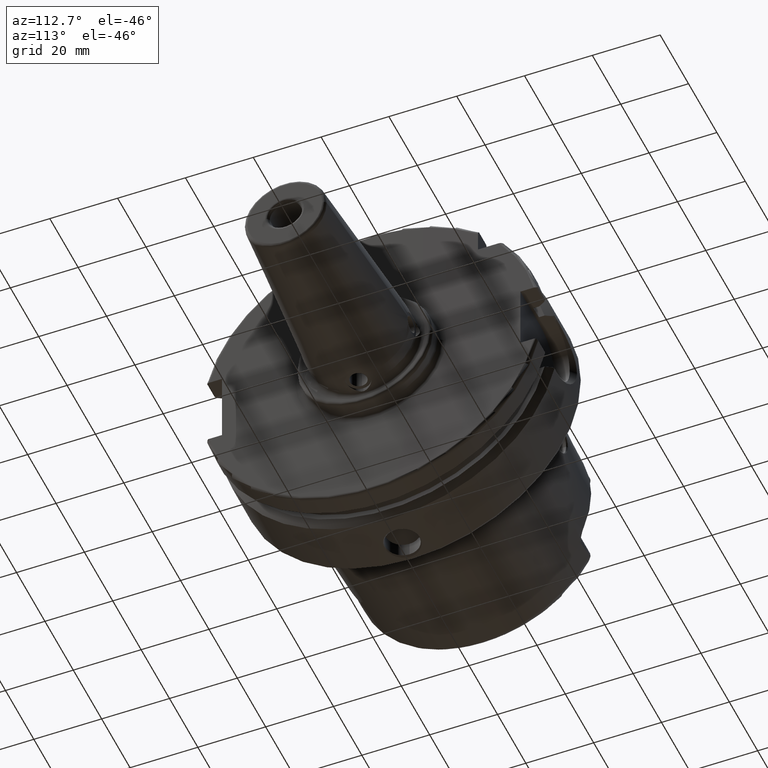
[diagram: clean part render]
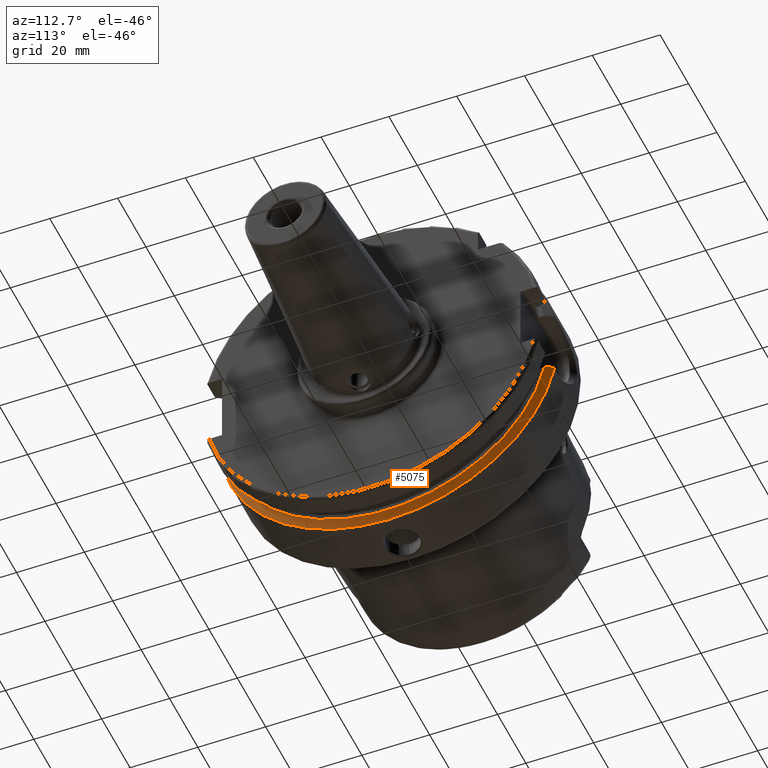
[diagram: same view with one face highlighted and labeled with its STEP entity id]
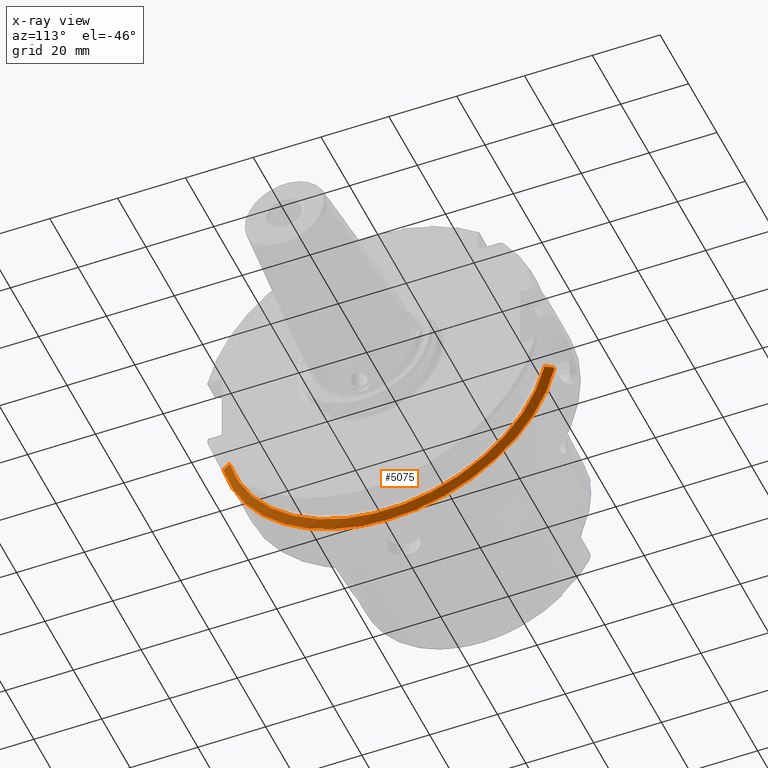
[diagram: x-ray of the same camera — body ghosted, the highlighted face saturated]
A machine part, auxiliary view. The second image highlights one B-rep face of the part: STEP entity #5075.
The next image is the same camera in x-ray: the body ghosted, the highlighted face saturated — about 0% of this face is hidden behind the body in this view.
In plain terms, the highlighted conical surface has half-angle 60 deg.
Its self-contained STEP definition (entity closure, byte-faithful):
#1304=CARTESIAN_POINT('',(1.675240473581E1,0.E0,0.E0));
#1305=DIRECTION('',(1.E0,0.E0,0.E0));
#1306=DIRECTION('',(0.E0,0.E0,-1.E0));
#1307=AXIS2_PLACEMENT_3D('',#1304,#1305,#1306);
#1448=CARTESIAN_POINT('',(1.675240473581E1,0.E0,0.E0));
#1449=DIRECTION('',(1.E0,0.E0,0.E0));
#1450=DIRECTION('',(0.E0,-9.733451587899E-1,-2.293451587899E-1));
#1451=AXIS2_PLACEMENT_3D('',#1448,#1449,#1450);
#1547=CARTESIAN_POINT('',(1.707615063271E1,-4.82E1,-1.1E1));
#1548=CARTESIAN_POINT('',(1.702262669138E1,-4.827742102738E1,
-1.107742102738E1));
#1549=CARTESIAN_POINT('',(1.691514514365E1,-4.843271839288E1,
-1.123271839288E1));
#1550=CARTESIAN_POINT('',(1.680679613299E1,-4.858892633407E1,
-1.138892633407E1));
#1551=CARTESIAN_POINT('',(1.675240473581E1,-4.866725793949E1,
-1.146725793949E1));
#1553=CARTESIAN_POINT('',(1.707615063271E1,-4.82E1,-1.1E1));
#1554=CARTESIAN_POINT('',(1.719414838792E1,-4.799036718895E1,-1.1E1));
#1555=CARTESIAN_POINT('',(1.742917207650E1,-4.757269268648E1,-1.1E1));
#1556=CARTESIAN_POINT('',(1.777878576717E1,-4.695095970886E1,-1.1E1));
#1557=CARTESIAN_POINT('',(1.800991963283E1,-4.653964225334E1,-1.1E1));
#1558=CARTESIAN_POINT('',(1.8125E1,-4.633477721644E1,-1.1E1));
#1560=CARTESIAN_POINT('',(1.8125E1,0.E0,0.E0));
#1561=DIRECTION('',(1.E0,0.E0,0.E0));
#1562=DIRECTION('',(0.E0,-9.729578356533E-1,-2.309827916554E-1));
#1563=AXIS2_PLACEMENT_3D('',#1560,#1561,#1562);
#1565=CARTESIAN_POINT('',(1.8125E1,4.656083740331E1,-1.E1));
#1566=CARTESIAN_POINT('',(1.800477868180E1,4.677381522932E1,-1.E1));
#1567=CARTESIAN_POINT('',(1.776332859370E1,4.720142676613E1,-1.E1));
#1568=CARTESIAN_POINT('',(1.739813750440E1,4.784780652456E1,-1.E1));
#1569=CARTESIAN_POINT('',(1.715266029216E1,4.828204899002E1,-1.E1));
#1570=CARTESIAN_POINT('',(1.702941860772E1,4.85E1,-1.E1));
#1572=CARTESIAN_POINT('',(1.675240473581E1,4.890531149727E1,-1.040531149727E1));
#1573=CARTESIAN_POINT('',(1.678340719352E1,4.886004318849E1,-1.036004318849E1));
#1574=CARTESIAN_POINT('',(1.684526332026E1,4.876966236934E1,-1.026966236934E1));
#1575=CARTESIAN_POINT('',(1.693760077100E1,4.863455921040E1,-1.013455921040E1));
#1576=CARTESIAN_POINT('',(1.699886218400E1,4.854480120102E1,-1.004480120102E1));
#1577=CARTESIAN_POINT('',(1.702941860772E1,4.85E1,-1.E1));
#2983=CARTESIAN_POINT('',(1.8125E1,4.656083740331E1,-1.E1));
#2985=VERTEX_POINT('',#2983);
#3007=CARTESIAN_POINT('',(1.8125E1,-4.633477721644E1,-1.1E1));
#3009=VERTEX_POINT('',#3007);
#3208=CARTESIAN_POINT('',(1.675240473581E1,0.E0,-5.E1));
#3209=VERTEX_POINT('',#3208);
#3237=CARTESIAN_POINT('',(1.675240473581E1,4.890531149727E1,-1.040531149727E1));
#3238=VERTEX_POINT('',#3237);
#3240=VERTEX_POINT('',#1577);
#3250=CARTESIAN_POINT('',(1.675240473581E1,-4.866725793949E1,
-1.146725793949E1));
#3252=VERTEX_POINT('',#3250);
#3257=VERTEX_POINT('',#1547);
#5057=CARTESIAN_POINT('',(1.743870236790E1,0.E0,0.E0));
#5058=DIRECTION('',(-1.E0,0.E0,0.E0));
#5059=DIRECTION('',(0.E0,0.E0,-1.E0));
#5060=AXIS2_PLACEMENT_3D('',#5057,#5058,#5059);
#5061=CONICAL_SURFACE('',#5060,4.881129763210E1,6.E1);
#5062=ORIENTED_EDGE('',*,*,#4960,.F.);
#5064=ORIENTED_EDGE('',*,*,#5063,.T.);
#5066=ORIENTED_EDGE('',*,*,#5065,.T.);
#5068=ORIENTED_EDGE('',*,*,#5067,.T.);
#5070=ORIENTED_EDGE('',*,*,#5069,.F.);
#5071=ORIENTED_EDGE('',*,*,#4834,.F.);
#5072=ORIENTED_EDGE('',*,*,#4922,.F.);
#5073=EDGE_LOOP('',(#5062,#5064,#5066,#5068,#5070,#5071,#5072));
#5074=FACE_OUTER_BOUND('',#5073,.F.);
#5075=ADVANCED_FACE('',(#5074),#5061,.T.);
#1308=CIRCLE('',#1307,5.E1);
#1452=CIRCLE('',#1451,5.E1);
#1552=B_SPLINE_CURVE_WITH_KNOTS('',3,(#1547,#1548,#1549,#1550,#1551),
.UNSPECIFIED.,.F.,.F.,(4,1,4),(0.E0,5.E-1,1.E0),.UNSPECIFIED.);
#1559=B_SPLINE_CURVE_WITH_KNOTS('',3,(#1553,#1554,#1555,#1556,#1557,#1558),
.UNSPECIFIED.,.F.,.F.,(4,1,1,4),(0.E0,3.333333333333E-1,6.666666666667E-1,1.E0),
.UNSPECIFIED.);
#1564=CIRCLE('',#1563,4.762259526419E1);
#1571=B_SPLINE_CURVE_WITH_KNOTS('',3,(#1565,#1566,#1567,#1568,#1569,#1570),
.UNSPECIFIED.,.F.,.F.,(4,1,1,4),(0.E0,3.333333333333E-1,6.666666666667E-1,1.E0),
.UNSPECIFIED.);
#1578=B_SPLINE_CURVE_WITH_KNOTS('',3,(#1572,#1573,#1574,#1575,#1576,#1577),
.UNSPECIFIED.,.F.,.F.,(4,1,1,4),(0.E0,3.333333333333E-1,6.666666666667E-1,1.E0),
.UNSPECIFIED.);
#4834=EDGE_CURVE('',#3209,#3238,#1308,.T.);
#4922=EDGE_CURVE('',#3252,#3209,#1452,.T.);
#4960=EDGE_CURVE('',#3257,#3252,#1552,.T.);
#5063=EDGE_CURVE('',#3257,#3009,#1559,.T.);
#5065=EDGE_CURVE('',#3009,#2985,#1564,.T.);
#5067=EDGE_CURVE('',#2985,#3240,#1571,.T.);
#5069=EDGE_CURVE('',#3238,#3240,#1578,.T.);